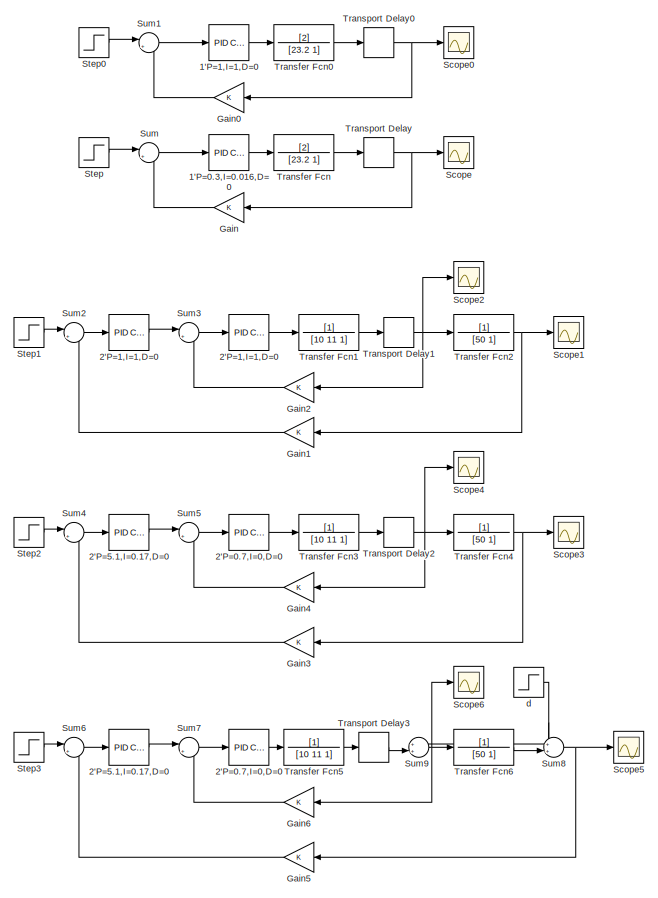
[diagram: root canvas - part 1/5, top left region]
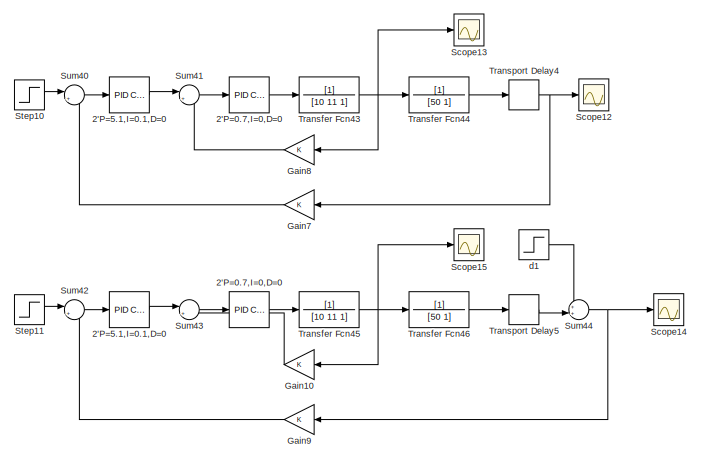
[diagram: root canvas - part 2/5, top right region]
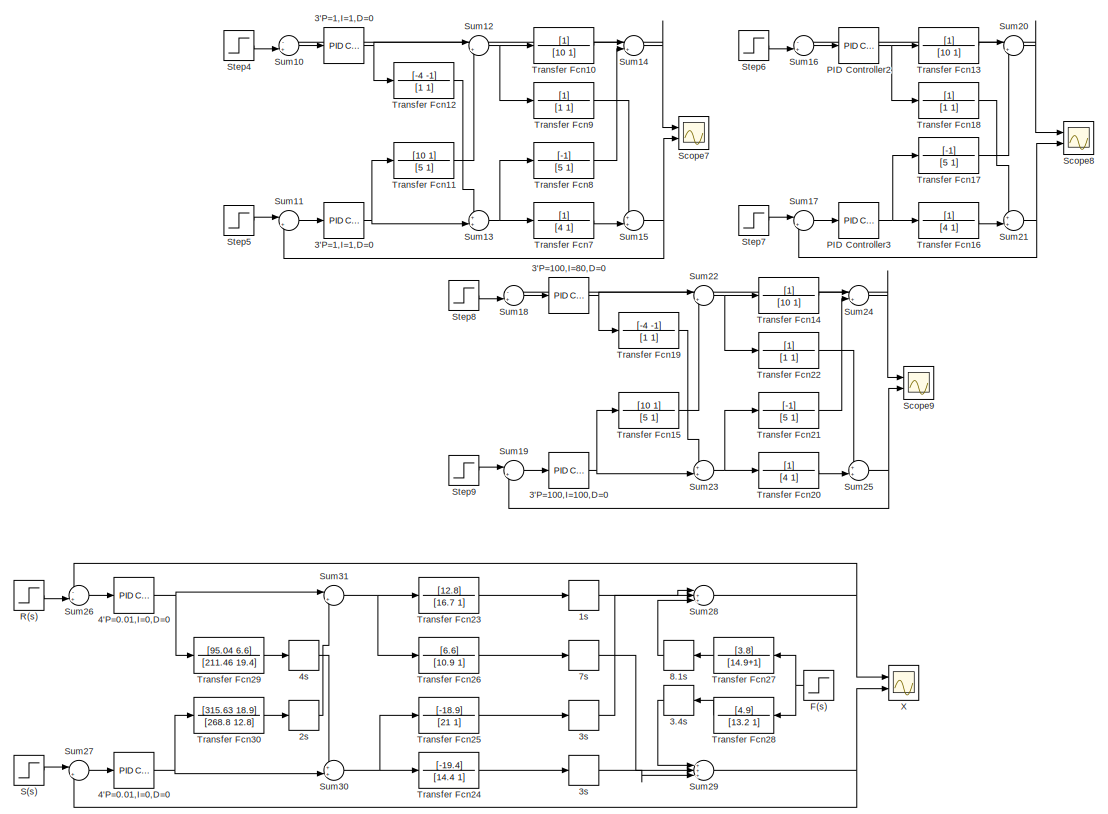
[diagram: root canvas - part 3/5, full width, middle band]
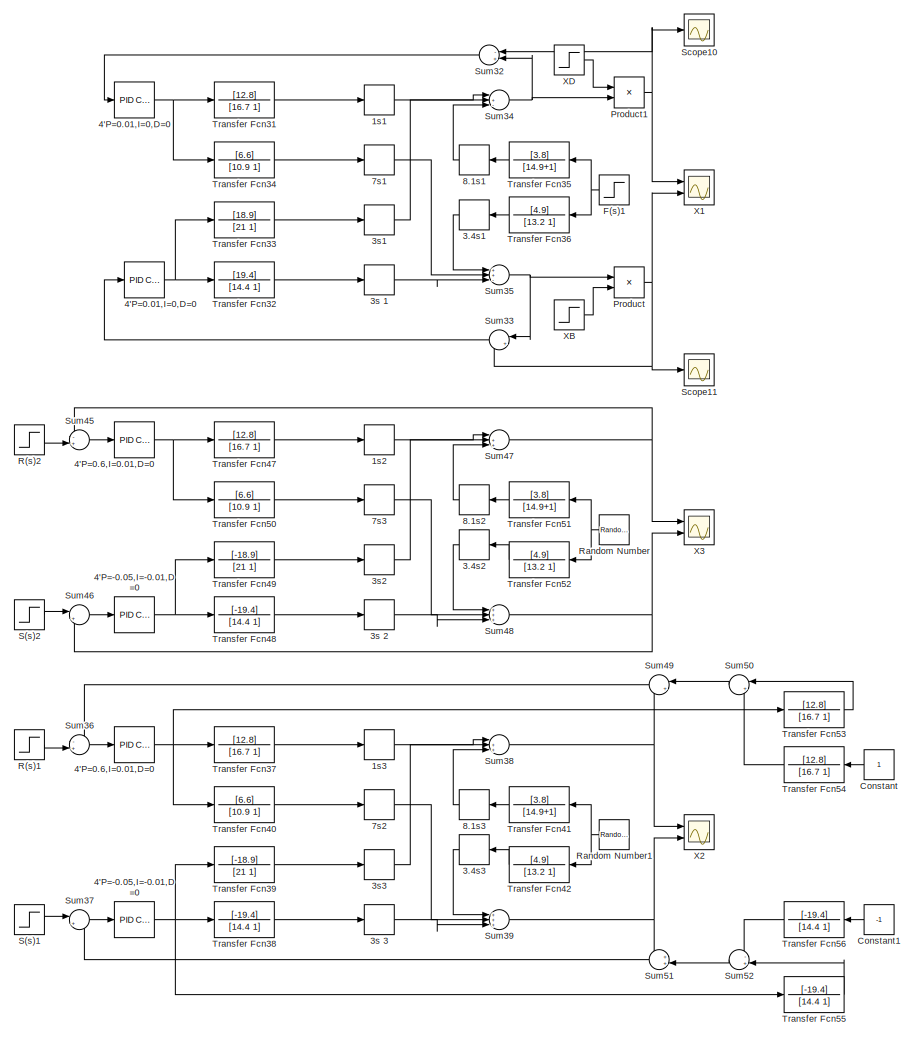
[diagram: root canvas - part 4/5, central region]
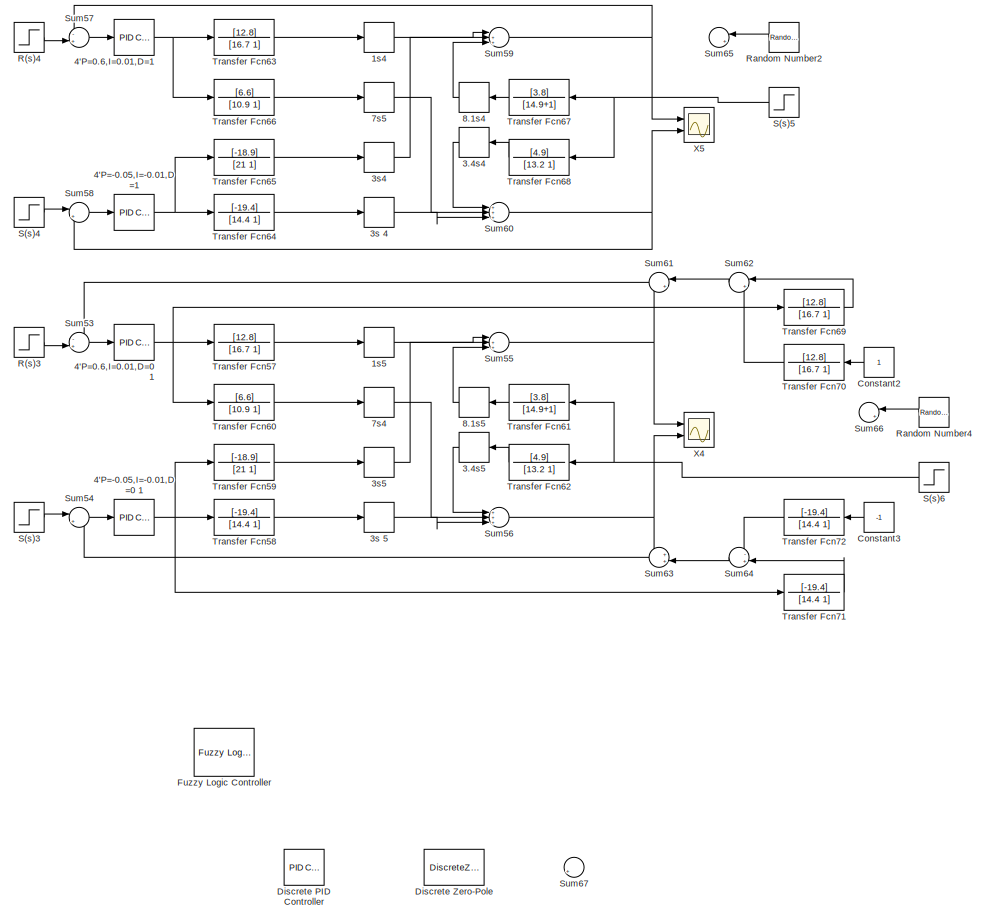
[diagram: root canvas - part 5/5, bottom center region]
MODEL slx_0bb5288d28c2
KIND model
CONFIG AbsTol = auto
CONFIG EnableMultiTasking = off
CONFIG FixedStep = auto
CONFIG MaxStep = auto
CONFIG MinStep = auto
CONFIG RelTol = 1e-3
CONFIG SampleTimeConstraint = Unconstrained
CONFIG Solver = VariableStepAuto
CONFIG SolverName = VariableStepAuto
CONFIG StartTime = 0.0
CONFIG StopTime = 300
BLOCK [Reference] 1'P=0.3,I=0.016,D=0  REF=simulink/Continuous/PID Controller
  Ports = [1, 1]
  SourceBlock = simulink/Continuous/PID Controller
  SourceType = PID 1dof
BLOCK [Reference] 1'P=1,I=1,D=0  REF=simulink/Continuous/PID Controller
  Ports = [1, 1]
  SourceBlock = simulink/Continuous/PID Controller
  SourceType = PID 1dof
BLOCK [TransportDelay] 1s
  Ports = [1, 1]
BLOCK [TransportDelay] 1s1
  Ports = [1, 1]
BLOCK [TransportDelay] 1s2
  Ports = [1, 1]
BLOCK [TransportDelay] 1s3
  Ports = [1, 1]
BLOCK [TransportDelay] 1s4
  Ports = [1, 1]
BLOCK [TransportDelay] 1s5
  Ports = [1, 1]
BLOCK [Reference] 2'P=0.7,I=0,D=0  REF=simulink/Continuous/PID Controller
  Ports = [1, 1]
  SourceBlock = simulink/Continuous/PID Controller
  SourceType = PID 1dof
BLOCK [Reference] 2'P=0.7,I=0,D=0   REF=simulink/Continuous/PID Controller
  Ports = [1, 1]
  SourceBlock = simulink/Continuous/PID Controller
  SourceType = PID 1dof
BLOCK [Reference] 2'P=0.7,I=0,D=0    REF=simulink/Continuous/PID Controller
  Ports = [1, 1]
  SourceBlock = simulink/Continuous/PID Controller
  SourceType = PID 1dof
BLOCK [Reference] 2'P=0.7,I=0,D=0      REF=simulink/Continuous/PID Controller
  Ports = [1, 1]
  SourceBlock = simulink/Continuous/PID Controller
  SourceType = PID 1dof
BLOCK [Reference] 2'P=1,I=1,D=0  REF=simulink/Continuous/PID Controller
  Ports = [1, 1]
  SourceBlock = simulink/Continuous/PID Controller
  SourceType = PID 1dof
BLOCK [Reference] 2'P=1,I=1,D=0    REF=simulink/Continuous/PID Controller
  Ports = [1, 1]
  SourceBlock = simulink/Continuous/PID Controller
  SourceType = PID 1dof
BLOCK [Reference] 2'P=5.1,I=0.1,D=0  REF=simulink/Continuous/PID Controller
  Ports = [1, 1]
  SourceBlock = simulink/Continuous/PID Controller
  SourceType = PID 1dof
BLOCK [Reference] 2'P=5.1,I=0.1,D=0   REF=simulink/Continuous/PID Controller
  Ports = [1, 1]
  SourceBlock = simulink/Continuous/PID Controller
  SourceType = PID 1dof
BLOCK [Reference] 2'P=5.1,I=0.17,D=0  REF=simulink/Continuous/PID Controller
  Ports = [1, 1]
  SourceBlock = simulink/Continuous/PID Controller
  SourceType = PID 1dof
BLOCK [Reference] 2'P=5.1,I=0.17,D=0   REF=simulink/Continuous/PID Controller
  Ports = [1, 1]
  SourceBlock = simulink/Continuous/PID Controller
  SourceType = PID 1dof
BLOCK [TransportDelay] 2s
  DelayTime = 2
  Ports = [1, 1]
BLOCK [Reference] 3'P=1,I=1,D=0  REF=simulink/Continuous/PID Controller
  Ports = [1, 1]
  SourceBlock = simulink/Continuous/PID Controller
  SourceType = PID 1dof
BLOCK [Reference] 3'P=1,I=1,D=0   REF=simulink/Continuous/PID Controller
  Ports = [1, 1]
  SourceBlock = simulink/Continuous/PID Controller
  SourceType = PID 1dof
BLOCK [Reference] 3'P=100,I=100,D=0  REF=simulink/Continuous/PID Controller
  Ports = [1, 1]
  SourceBlock = simulink/Continuous/PID Controller
  SourceType = PID 1dof
BLOCK [Reference] 3'P=100,I=80,D=0  REF=simulink/Continuous/PID Controller
  Ports = [1, 1]
  SourceBlock = simulink/Continuous/PID Controller
  SourceType = PID 1dof
BLOCK [TransportDelay] 3.4s
  DelayTime = 3.4
  Ports = [1, 1]
BLOCK [TransportDelay] 3.4s1
  DelayTime = 3.4
  Ports = [1, 1]
BLOCK [TransportDelay] 3.4s2
  DelayTime = 3.4
  Ports = [1, 1]
BLOCK [TransportDelay] 3.4s3
  DelayTime = 3.4
  Ports = [1, 1]
BLOCK [TransportDelay] 3.4s4
  DelayTime = 3.4
  Ports = [1, 1]
BLOCK [TransportDelay] 3.4s5
  DelayTime = 3.4
  Ports = [1, 1]
BLOCK [TransportDelay] 3s
  DelayTime = 3
  Ports = [1, 1]
BLOCK [TransportDelay] 3s 
  DelayTime = 3
  Ports = [1, 1]
BLOCK [TransportDelay] 3s 1
  DelayTime = 3
  Ports = [1, 1]
BLOCK [TransportDelay] 3s 2
  DelayTime = 3
  Ports = [1, 1]
BLOCK [TransportDelay] 3s 3
  DelayTime = 3
  Ports = [1, 1]
BLOCK [TransportDelay] 3s 4
  DelayTime = 3
  Ports = [1, 1]
BLOCK [TransportDelay] 3s 5
  DelayTime = 3
  Ports = [1, 1]
BLOCK [TransportDelay] 3s1
  DelayTime = 3
  Ports = [1, 1]
BLOCK [TransportDelay] 3s2
  DelayTime = 3
  Ports = [1, 1]
BLOCK [TransportDelay] 3s3
  DelayTime = 3
  Ports = [1, 1]
BLOCK [TransportDelay] 3s4
  DelayTime = 3
  Ports = [1, 1]
BLOCK [TransportDelay] 3s5
  DelayTime = 3
  Ports = [1, 1]
BLOCK [Reference] 4'P=-0.05,I=-0.01,D=0  REF=simulink/Continuous/PID Controller
  Ports = [1, 1]
  SourceBlock = simulink/Continuous/PID Controller
  SourceType = PID 1dof
BLOCK [Reference] 4'P=-0.05,I=-0.01,D=0    REF=simulink/Continuous/PID Controller
  Ports = [1, 1]
  SourceBlock = simulink/Continuous/PID Controller
  SourceType = PID 1dof
BLOCK [Reference] 4'P=-0.05,I=-0.01,D=0  1  REF=simulink/Continuous/PID Controller
  Ports = [1, 1]
  SourceBlock = simulink/Continuous/PID Controller
  SourceType = PID 1dof
BLOCK [Reference] 4'P=-0.05,I=-0.01,D=1  REF=simulink/Continuous/PID Controller
  Ports = [1, 1]
  SourceBlock = simulink/Continuous/PID Controller
  SourceType = PID 1dof
BLOCK [Reference] 4'P=0.01,I=0,D=0  REF=simulink/Continuous/PID Controller
  Ports = [1, 1]
  SourceBlock = simulink/Continuous/PID Controller
  SourceType = PID 1dof
BLOCK [Reference] 4'P=0.01,I=0,D=0   REF=simulink/Continuous/PID Controller
  Ports = [1, 1]
  SourceBlock = simulink/Continuous/PID Controller
  SourceType = PID 1dof
BLOCK [Reference] 4'P=0.01,I=0,D=0    REF=simulink/Continuous/PID Controller
  Ports = [1, 1]
  SourceBlock = simulink/Continuous/PID Controller
  SourceType = PID 1dof
BLOCK [Reference] 4'P=0.01,I=0,D=0     REF=simulink/Continuous/PID Controller
  Ports = [1, 1]
  SourceBlock = simulink/Continuous/PID Controller
  SourceType = PID 1dof
BLOCK [Reference] 4'P=0.6,I=0.01,D=0  REF=simulink/Continuous/PID Controller
  Ports = [1, 1]
  SourceBlock = simulink/Continuous/PID Controller
  SourceType = PID 1dof
BLOCK [Reference] 4'P=0.6,I=0.01,D=0    REF=simulink/Continuous/PID Controller
  Ports = [1, 1]
  SourceBlock = simulink/Continuous/PID Controller
  SourceType = PID 1dof
BLOCK [Reference] 4'P=0.6,I=0.01,D=0  1  REF=simulink/Continuous/PID Controller
  Ports = [1, 1]
  SourceBlock = simulink/Continuous/PID Controller
  SourceType = PID 1dof
BLOCK [Reference] 4'P=0.6,I=0.01,D=1  REF=simulink/Continuous/PID Controller
  Ports = [1, 1]
  SourceBlock = simulink/Continuous/PID Controller
  SourceType = PID 1dof
BLOCK [TransportDelay] 4s
  DelayTime = 4
  Ports = [1, 1]
BLOCK [TransportDelay] 7s
  DelayTime = 7
  Ports = [1, 1]
BLOCK [TransportDelay] 7s1
  DelayTime = 7
  Ports = [1, 1]
BLOCK [TransportDelay] 7s2
  DelayTime = 7
  Ports = [1, 1]
BLOCK [TransportDelay] 7s3
  DelayTime = 7
  Ports = [1, 1]
BLOCK [TransportDelay] 7s4
  DelayTime = 7
  Ports = [1, 1]
BLOCK [TransportDelay] 7s5
  DelayTime = 7
  Ports = [1, 1]
BLOCK [TransportDelay] 8.1s
  DelayTime = 8.1
  Ports = [1, 1]
BLOCK [TransportDelay] 8.1s1
  DelayTime = 8.1
  Ports = [1, 1]
BLOCK [TransportDelay] 8.1s2
  DelayTime = 8.1
  Ports = [1, 1]
BLOCK [TransportDelay] 8.1s3
  DelayTime = 8.1
  Ports = [1, 1]
BLOCK [TransportDelay] 8.1s4
  DelayTime = 8.1
  Ports = [1, 1]
BLOCK [TransportDelay] 8.1s5
  DelayTime = 8.1
  Ports = [1, 1]
BLOCK [Constant] Constant
BLOCK [Constant] Constant1
  Value = -1
BLOCK [Constant] Constant2
BLOCK [Constant] Constant3
  Value = -1
BLOCK [Reference] Discrete PID Controller  REF=simulink/Continuous/PID Controller
  Ports = [1, 1]
  SourceBlock = simulink/Continuous/PID Controller
  SourceType = PID 1dof
BLOCK [DiscreteZeroPole] Discrete Zero-Pole
  Gain = 1
  Poles = [0 0.5]
  SampleTime = -1
BLOCK [Step] F(s)
  After = 0
  SampleTime = 0
  Time = 0
BLOCK [Step] F(s)1
  Before = 1
  SampleTime = 0
  Time = 0
BLOCK [Reference] Fuzzy Logic Controller  REF=fuzblock/Fuzzy Logic   (lib defined in mdl_858b3b3e7478)
Controller
  Ports = [1, 1]
  SourceBlock = fuzblock/Fuzzy Logic \nController
  SourceType = FIS
BLOCK [Gain] Gain
  OutDataTypeStr = Inherit: Inherit via internal rule
  ParamDataTypeStr = Inherit: Inherit via internal rule
  SaturateOnIntegerOverflow = off
BLOCK [Gain] Gain0
  OutDataTypeStr = Inherit: Inherit via internal rule
  ParamDataTypeStr = Inherit: Inherit via internal rule
  SaturateOnIntegerOverflow = off
BLOCK [Gain] Gain1
  OutDataTypeStr = Inherit: Inherit via internal rule
  ParamDataTypeStr = Inherit: Inherit via internal rule
  SaturateOnIntegerOverflow = off
BLOCK [Gain] Gain10
  OutDataTypeStr = Inherit: Inherit via internal rule
  ParamDataTypeStr = Inherit: Inherit via internal rule
  SaturateOnIntegerOverflow = off
BLOCK [Gain] Gain2
  OutDataTypeStr = Inherit: Inherit via internal rule
  ParamDataTypeStr = Inherit: Inherit via internal rule
  SaturateOnIntegerOverflow = off
BLOCK [Gain] Gain3
  OutDataTypeStr = Inherit: Inherit via internal rule
  ParamDataTypeStr = Inherit: Inherit via internal rule
  SaturateOnIntegerOverflow = off
BLOCK [Gain] Gain4
  OutDataTypeStr = Inherit: Inherit via internal rule
  ParamDataTypeStr = Inherit: Inherit via internal rule
  SaturateOnIntegerOverflow = off
BLOCK [Gain] Gain5
  OutDataTypeStr = Inherit: Inherit via internal rule
  ParamDataTypeStr = Inherit: Inherit via internal rule
  SaturateOnIntegerOverflow = off
BLOCK [Gain] Gain6
  OutDataTypeStr = Inherit: Inherit via internal rule
  ParamDataTypeStr = Inherit: Inherit via internal rule
  SaturateOnIntegerOverflow = off
BLOCK [Gain] Gain7
  OutDataTypeStr = Inherit: Inherit via internal rule
  ParamDataTypeStr = Inherit: Inherit via internal rule
  SaturateOnIntegerOverflow = off
BLOCK [Gain] Gain8
  OutDataTypeStr = Inherit: Inherit via internal rule
  ParamDataTypeStr = Inherit: Inherit via internal rule
  SaturateOnIntegerOverflow = off
BLOCK [Gain] Gain9
  OutDataTypeStr = Inherit: Inherit via internal rule
  ParamDataTypeStr = Inherit: Inherit via internal rule
  SaturateOnIntegerOverflow = off
BLOCK [Reference] PID Controller2  REF=simulink/Continuous/PID Controller
  Ports = [1, 1]
  SourceBlock = simulink/Continuous/PID Controller
  SourceType = PID 1dof
BLOCK [Reference] PID Controller3  REF=simulink/Continuous/PID Controller
  Ports = [1, 1]
  SourceBlock = simulink/Continuous/PID Controller
  SourceType = PID 1dof
BLOCK [Product] Product
  InputSameDT = off
  OutDataTypeStr = Inherit: Inherit via internal rule
  Ports = [2, 1]
  RndMeth = Floor
  SaturateOnIntegerOverflow = off
BLOCK [Product] Product1
  InputSameDT = off
  OutDataTypeStr = Inherit: Inherit via internal rule
  Ports = [2, 1]
  RndMeth = Floor
  SaturateOnIntegerOverflow = off
BLOCK [Step] R(s)
  SampleTime = 0
  Time = 0
BLOCK [Step] R(s)1
  After = 10
  SampleTime = 0
  Time = 0
BLOCK [Step] R(s)2
  After = 10
  SampleTime = 0
  Time = 0
BLOCK [Step] R(s)3
  After = 10
  SampleTime = 0
  Time = 0
BLOCK [Step] R(s)4
  After = 10
  SampleTime = 0
  Time = 0
BLOCK [RandomNumber] Random Number
  SampleTime = 0.1
BLOCK [RandomNumber] Random Number1
  SampleTime = 0.1
BLOCK [RandomNumber] Random Number2
  SampleTime = 0.1
BLOCK [RandomNumber] Random Number4
  SampleTime = 0.1
BLOCK [Step] S(s)
  SampleTime = 0
  Time = 0
BLOCK [Step] S(s)1
  After = 10
  SampleTime = 0
  Time = 0
BLOCK [Step] S(s)2
  After = 10
  SampleTime = 0
  Time = 0
BLOCK [Step] S(s)3
  After = 10
  SampleTime = 0
  Time = 0
BLOCK [Step] S(s)4
  After = 10
  SampleTime = 0
  Time = 0
BLOCK [Step] S(s)5
  After = 10
  SampleTime = 0
  Time = 100
BLOCK [Step] S(s)6
  After = 10
  SampleTime = 0
  Time = 100
BLOCK [Scope] Scope
  NumInputPorts = 1
  Ports = [1]
  ScopeSpecificationString = Simulink.scopes.TimeScopeBlockCfg('CurrentConfiguration', extmgr.ConfigurationSet(extmgr.Configuration('Core','General UI',true),extmgr.Configuration('Core','Source UI',true),extmgr.Configuration('Sources','WiredSimulink',true),extmgr.Configuration('Visuals','Time Domain',true,'SerializedDisplays',{struct('MinYLimReal','-0.25136','MaxYLimReal','2.26223','YLabelReal','','MinYLimMag','0.00000','MaxY...<+1408ch>
BLOCK [Scope] Scope0
  NumInputPorts = 1
  Ports = [1]
  ScopeSpecificationString = Simulink.scopes.TimeScopeBlockCfg('CurrentConfiguration', extmgr.ConfigurationSet(extmgr.Configuration('Core','General UI',true),extmgr.Configuration('Core','Source UI',true),extmgr.Configuration('Sources','WiredSimulink',true,'DataLoggingVariableName','ScopeData1'),extmgr.Configuration('Visuals','Time Domain',true,'SerializedDisplays',{struct('MinYLimReal','-1287732.83465','MaxYLimReal','479772.5...<+1492ch>
BLOCK [Scope] Scope1
  NumInputPorts = 1
  Ports = [1]
  ScopeSpecificationString = Simulink.scopes.TimeScopeBlockCfg('CurrentConfiguration', extmgr.ConfigurationSet(extmgr.Configuration('Core','General UI',true),extmgr.Configuration('Core','Source UI',true),extmgr.Configuration('Sources','WiredSimulink',true,'DataLoggingVariableName','ScopeData1'),extmgr.Configuration('Visuals','Time Domain',true,'SerializedDisplays',{struct('MinYLimReal','-76651100683.07205','MaxYLimReal','4697...<+1454ch>
BLOCK [Scope] Scope10
  NumInputPorts = 1
  Ports = [1]
  ScopeSpecificationString = Simulink.scopes.TimeScopeBlockCfg('CurrentConfiguration', extmgr.ConfigurationSet(extmgr.Configuration('Core','General UI',true),extmgr.Configuration('Core','Source UI',true),extmgr.Configuration('Sources','WiredSimulink',true,'DataLoggingVariableName','ScopeData2'),extmgr.Configuration('Visuals','Time Domain',true,'SerializedDisplays',{struct('MinYLimReal','-0.82311','MaxYLimReal','0.4826','YLabe...<+1394ch>
BLOCK [Scope] Scope11
  NumInputPorts = 1
  Ports = [1]
  ScopeSpecificationString = Simulink.scopes.TimeScopeBlockCfg('CurrentConfiguration', extmgr.ConfigurationSet(extmgr.Configuration('Core','General UI',true),extmgr.Configuration('Core','Source UI',true),extmgr.Configuration('Sources','WiredSimulink',true,'DataLoggingVariableName','ScopeData3'),extmgr.Configuration('Visuals','Time Domain',true,'SerializedDisplays',{struct('MinYLimReal','-0.02594','MaxYLimReal','0.23345','YLab...<+1366ch>
BLOCK [Scope] Scope12
  NumInputPorts = 1
  Ports = [1]
  ScopeSpecificationString = Simulink.scopes.TimeScopeBlockCfg('CurrentConfiguration', extmgr.ConfigurationSet(extmgr.Configuration('Core','General UI',true),extmgr.Configuration('Core','Source UI',true),extmgr.Configuration('Sources','WiredSimulink',true,'DataLoggingVariableName','ScopeData1'),extmgr.Configuration('Visuals','Time Domain',true,'SerializedDisplays',{struct('MinYLimReal','-0.14561','MaxYLimReal','1.31046','YLab...<+1419ch>
BLOCK [Scope] Scope13
  NumInputPorts = 1
  Ports = [1]
  ScopeSpecificationString = Simulink.scopes.TimeScopeBlockCfg('CurrentConfiguration', extmgr.ConfigurationSet(extmgr.Configuration('Core','General UI',true),extmgr.Configuration('Core','Source UI',true),extmgr.Configuration('Sources','WiredSimulink',true,'DataLoggingVariableName','ScopeData2'),extmgr.Configuration('Visuals','Time Domain',true,'SerializedDisplays',{struct('MinYLimReal','-0.30908','MaxYLimReal','2.78169','YLab...<+1373ch>
BLOCK [Scope] Scope14
  NumInputPorts = 1
  Ports = [1]
  ScopeSpecificationString = Simulink.scopes.TimeScopeBlockCfg('CurrentConfiguration', extmgr.ConfigurationSet(extmgr.Configuration('Core','General UI',true),extmgr.Configuration('Core','Source UI',true),extmgr.Configuration('Sources','WiredSimulink',true,'DataLoggingVariableName','ScopeData3'),extmgr.Configuration('Visuals','Time Domain',true,'SerializedDisplays',{struct('MinYLimReal','-0.24792','MaxYLimReal','2.23127','YLab...<+1408ch>
BLOCK [Scope] Scope15
  NumInputPorts = 1
  Ports = [1]
  ScopeSpecificationString = Simulink.scopes.TimeScopeBlockCfg('CurrentConfiguration', extmgr.ConfigurationSet(extmgr.Configuration('Core','General UI',true),extmgr.Configuration('Core','Source UI',true),extmgr.Configuration('Sources','WiredSimulink',true,'DataLoggingVariableName','ScopeData4'),extmgr.Configuration('Visuals','Time Domain',true,'SerializedDisplays',{struct('MinYLimReal','-0.30908','MaxYLimReal','2.78169','YLab...<+1373ch>
BLOCK [Scope] Scope2
  NumInputPorts = 1
  Ports = [1]
  ScopeSpecificationString = Simulink.scopes.TimeScopeBlockCfg('CurrentConfiguration', extmgr.ConfigurationSet(extmgr.Configuration('Core','General UI',true),extmgr.Configuration('Core','Source UI',true),extmgr.Configuration('Sources','WiredSimulink',true,'DataLoggingVariableName','ScopeData2'),extmgr.Configuration('Visuals','Time Domain',true,'SerializedDisplays',{struct('MinYLimReal','-4648904763159.4531','MaxYLimReal','262...<+1463ch>
BLOCK [Scope] Scope3
  NumInputPorts = 1
  Ports = [1]
  ScopeSpecificationString = Simulink.scopes.TimeScopeBlockCfg('CurrentConfiguration', extmgr.ConfigurationSet(extmgr.Configuration('Core','General UI',true),extmgr.Configuration('Core','Source UI',true),extmgr.Configuration('Sources','WiredSimulink',true,'DataLoggingVariableName','ScopeData3'),extmgr.Configuration('Visuals','Time Domain',true,'SerializedDisplays',{struct('MinYLimReal','-0.1708','MaxYLimReal','1.53719','YLabe...<+1414ch>
BLOCK [Scope] Scope4
  NumInputPorts = 1
  Ports = [1]
  ScopeSpecificationString = Simulink.scopes.TimeScopeBlockCfg('CurrentConfiguration', extmgr.ConfigurationSet(extmgr.Configuration('Core','General UI',true),extmgr.Configuration('Core','Source UI',true),extmgr.Configuration('Sources','WiredSimulink',true,'DataLoggingVariableName','ScopeData4'),extmgr.Configuration('Visuals','Time Domain',true,'SerializedDisplays',{struct('MinYLimReal','-0.44669','MaxYLimReal','4.0202','YLabe...<+1400ch>
BLOCK [Scope] Scope5
  NumInputPorts = 1
  Ports = [1]
  ScopeSpecificationString = Simulink.scopes.TimeScopeBlockCfg('CurrentConfiguration', extmgr.ConfigurationSet(extmgr.Configuration('Core','General UI',true),extmgr.Configuration('Core','Source UI',true),extmgr.Configuration('Sources','WiredSimulink',true,'DataLoggingVariableName','ScopeData5'),extmgr.Configuration('Visuals','Time Domain',true,'SerializedDisplays',{struct('MinYLimReal','-0.25074','MaxYLimReal','2.25667','YLab...<+1407ch>
BLOCK [Scope] Scope6
  NumInputPorts = 1
  Ports = [1]
  ScopeSpecificationString = Simulink.scopes.TimeScopeBlockCfg('CurrentConfiguration', extmgr.ConfigurationSet(extmgr.Configuration('Core','General UI',true),extmgr.Configuration('Core','Source UI',true),extmgr.Configuration('Sources','WiredSimulink',true,'DataLoggingVariableName','ScopeData6'),extmgr.Configuration('Visuals','Time Domain',true,'SerializedDisplays',{struct('MinYLimReal','-3.66365','MaxYLimReal','4.37764','YLab...<+1392ch>
BLOCK [Scope] Scope7
  NumInputPorts = 2
  Ports = [2]
  ScopeSpecificationString = Simulink.scopes.TimeScopeBlockCfg('CurrentConfiguration', extmgr.ConfigurationSet(extmgr.Configuration('Core','General UI',true),extmgr.Configuration('Core','Source UI',true),extmgr.Configuration('Sources','WiredSimulink',true,'DataLoggingVariableName','ScopeData1'),extmgr.Configuration('Visuals','Time Domain',true,'SerializedDisplays',{struct('MinYLimReal','-0.13313','MaxYLimReal','1.19814','YLab...<+1372ch>
BLOCK [Scope] Scope8
  NumInputPorts = 2
  Ports = [2]
  ScopeSpecificationString = Simulink.scopes.TimeScopeBlockCfg('CurrentConfiguration', extmgr.ConfigurationSet(extmgr.Configuration('Core','General UI',true),extmgr.Configuration('Core','Source UI',true),extmgr.Configuration('Sources','WiredSimulink',true,'DataLoggingVariableName','ScopeData2'),extmgr.Configuration('Visuals','Time Domain',true,'SerializedDisplays',{struct('MinYLimReal','-0.02574','MaxYLimReal','0.14152','YLab...<+1372ch>
BLOCK [Scope] Scope9
  NumInputPorts = 2
  Ports = [2]
  ScopeSpecificationString = Simulink.scopes.TimeScopeBlockCfg('CurrentConfiguration', extmgr.ConfigurationSet(extmgr.Configuration('Core','General UI',true),extmgr.Configuration('Core','Source UI',true),extmgr.Configuration('Sources','WiredSimulink',true,'DataLoggingVariableName','ScopeData3'),extmgr.Configuration('Visuals','Time Domain',true,'SerializedDisplays',{struct('MinYLimReal','-0.12509','MaxYLimReal','1.12583','YLab...<+1372ch>
BLOCK [Step] Step
  After = 2
  SampleTime = 0
  Time = 0
BLOCK [Step] Step0
  After = 2
  SampleTime = 0
  Time = 0
BLOCK [Step] Step1
  SampleTime = 0
  Time = 0
BLOCK [Step] Step10
  SampleTime = 0
  Time = 0
BLOCK [Step] Step11
  SampleTime = 0
  Time = 0
BLOCK [Step] Step2
  SampleTime = 0
  Time = 0
BLOCK [Step] Step3
  SampleTime = 0
  Time = 0
BLOCK [Step] Step4
  SampleTime = 0
  Time = 0
BLOCK [Step] Step5
  SampleTime = 0
  Time = 0
BLOCK [Step] Step6
  SampleTime = 0
  Time = 0
BLOCK [Step] Step7
  SampleTime = 0
  Time = 0
BLOCK [Step] Step8
  SampleTime = 0
  Time = 0
BLOCK [Step] Step9
  SampleTime = 0
  Time = 0
BLOCK [Sum] Sum
  IconShape = round
  InputSameDT = off
  Inputs = |+-
  OutDataTypeStr = Inherit: Inherit via internal rule
  Ports = [2, 1]
  SaturateOnIntegerOverflow = off
BLOCK [Sum] Sum1
  IconShape = round
  InputSameDT = off
  Inputs = |+-
  OutDataTypeStr = Inherit: Inherit via internal rule
  Ports = [2, 1]
  SaturateOnIntegerOverflow = off
BLOCK [Sum] Sum10
  IconShape = round
  InputSameDT = off
  Inputs = -+|
  OutDataTypeStr = Inherit: Inherit via internal rule
  Ports = [2, 1]
  SaturateOnIntegerOverflow = off
BLOCK [Sum] Sum11
  IconShape = round
  InputSameDT = off
  Inputs = |+-
  OutDataTypeStr = Inherit: Inherit via internal rule
  Ports = [2, 1]
  SaturateOnIntegerOverflow = off
BLOCK [Sum] Sum12
  IconShape = round
  InputSameDT = off
  Inputs = |++
  OutDataTypeStr = Inherit: Inherit via internal rule
  Ports = [2, 1]
  SaturateOnIntegerOverflow = off
BLOCK [Sum] Sum13
  IconShape = round
  InputSameDT = off
  Inputs = ++|
  OutDataTypeStr = Inherit: Inherit via internal rule
  Ports = [2, 1]
  SaturateOnIntegerOverflow = off
BLOCK [Sum] Sum14
  IconShape = round
  InputSameDT = off
  Inputs = |++
  OutDataTypeStr = Inherit: Inherit via internal rule
  Ports = [2, 1]
  SaturateOnIntegerOverflow = off
BLOCK [Sum] Sum15
  IconShape = round
  InputSameDT = off
  Inputs = ++|
  OutDataTypeStr = Inherit: Inherit via internal rule
  Ports = [2, 1]
  SaturateOnIntegerOverflow = off
BLOCK [Sum] Sum16
  IconShape = round
  InputSameDT = off
  Inputs = -+|
  OutDataTypeStr = Inherit: Inherit via internal rule
  Ports = [2, 1]
  SaturateOnIntegerOverflow = off
BLOCK [Sum] Sum17
  IconShape = round
  InputSameDT = off
  Inputs = |+-
  OutDataTypeStr = Inherit: Inherit via internal rule
  Ports = [2, 1]
  SaturateOnIntegerOverflow = off
BLOCK [Sum] Sum18
  IconShape = round
  InputSameDT = off
  Inputs = -+|
  OutDataTypeStr = Inherit: Inherit via internal rule
  Ports = [2, 1]
  SaturateOnIntegerOverflow = off
BLOCK [Sum] Sum19
  IconShape = round
  InputSameDT = off
  Inputs = |+-
  OutDataTypeStr = Inherit: Inherit via internal rule
  Ports = [2, 1]
  SaturateOnIntegerOverflow = off
BLOCK [Sum] Sum2
  IconShape = round
  InputSameDT = off
  Inputs = |+-
  OutDataTypeStr = Inherit: Inherit via internal rule
  Ports = [2, 1]
  SaturateOnIntegerOverflow = off
BLOCK [Sum] Sum20
  IconShape = round
  InputSameDT = off
  Inputs = |++
  OutDataTypeStr = Inherit: Inherit via internal rule
  Ports = [2, 1]
  SaturateOnIntegerOverflow = off
BLOCK [Sum] Sum21
  IconShape = round
  InputSameDT = off
  Inputs = ++|
  OutDataTypeStr = Inherit: Inherit via internal rule
  Ports = [2, 1]
  SaturateOnIntegerOverflow = off
BLOCK [Sum] Sum22
  IconShape = round
  InputSameDT = off
  Inputs = |++
  OutDataTypeStr = Inherit: Inherit via internal rule
  Ports = [2, 1]
  SaturateOnIntegerOverflow = off
BLOCK [Sum] Sum23
  IconShape = round
  InputSameDT = off
  Inputs = ++|
  OutDataTypeStr = Inherit: Inherit via internal rule
  Ports = [2, 1]
  SaturateOnIntegerOverflow = off
BLOCK [Sum] Sum24
  IconShape = round
  InputSameDT = off
  Inputs = |++
  OutDataTypeStr = Inherit: Inherit via internal rule
  Ports = [2, 1]
  SaturateOnIntegerOverflow = off
BLOCK [Sum] Sum25
  IconShape = round
  InputSameDT = off
  Inputs = ++|
  OutDataTypeStr = Inherit: Inherit via internal rule
  Ports = [2, 1]
  SaturateOnIntegerOverflow = off
BLOCK [Sum] Sum26
  IconShape = round
  InputSameDT = off
  Inputs = -+|
  OutDataTypeStr = Inherit: Inherit via internal rule
  Ports = [2, 1]
  SaturateOnIntegerOverflow = off
BLOCK [Sum] Sum27
  IconShape = round
  InputSameDT = off
  Inputs = |+-
  OutDataTypeStr = Inherit: Inherit via internal rule
  Ports = [2, 1]
  SaturateOnIntegerOverflow = off
BLOCK [Sum] Sum28
  IconShape = round
  InputSameDT = off
  Inputs = |+++
  OutDataTypeStr = Inherit: Inherit via internal rule
  Ports = [3, 1]
  SaturateOnIntegerOverflow = off
BLOCK [Sum] Sum29
  IconShape = round
  InputSameDT = off
  Inputs = +++|
  OutDataTypeStr = Inherit: Inherit via internal rule
  Ports = [3, 1]
  SaturateOnIntegerOverflow = off
BLOCK [Sum] Sum3
  IconShape = round
  InputSameDT = off
  Inputs = |+-
  OutDataTypeStr = Inherit: Inherit via internal rule
  Ports = [2, 1]
  SaturateOnIntegerOverflow = off
BLOCK [Sum] Sum30
  IconShape = round
  InputSameDT = off
  Inputs = ++|
  OutDataTypeStr = Inherit: Inherit via internal rule
  Ports = [2, 1]
  SaturateOnIntegerOverflow = off
BLOCK [Sum] Sum31
  IconShape = round
  InputSameDT = off
  Inputs = |++
  OutDataTypeStr = Inherit: Inherit via internal rule
  Ports = [2, 1]
  SaturateOnIntegerOverflow = off
BLOCK [Sum] Sum32
  IconShape = round
  InputSameDT = off
  Inputs = -+|
  OutDataTypeStr = Inherit: Inherit via internal rule
  Ports = [2, 1]
  SaturateOnIntegerOverflow = off
BLOCK [Sum] Sum33
  IconShape = round
  InputSameDT = off
  Inputs = |+-
  OutDataTypeStr = Inherit: Inherit via internal rule
  Ports = [2, 1]
  SaturateOnIntegerOverflow = off
BLOCK [Sum] Sum34
  IconShape = round
  InputSameDT = off
  Inputs = |+-+
  OutDataTypeStr = Inherit: Inherit via internal rule
  Ports = [3, 1]
  SaturateOnIntegerOverflow = off
BLOCK [Sum] Sum35
  IconShape = round
  InputSameDT = off
  Inputs = ++-|
  OutDataTypeStr = Inherit: Inherit via internal rule
  Ports = [3, 1]
  SaturateOnIntegerOverflow = off
BLOCK [Sum] Sum36
  IconShape = round
  InputSameDT = off
  Inputs = -+|
  OutDataTypeStr = Inherit: Inherit via internal rule
  Ports = [2, 1]
  SaturateOnIntegerOverflow = off
BLOCK [Sum] Sum37
  IconShape = round
  InputSameDT = off
  Inputs = |+-
  OutDataTypeStr = Inherit: Inherit via internal rule
  Ports = [2, 1]
  SaturateOnIntegerOverflow = off
BLOCK [Sum] Sum38
  IconShape = round
  InputSameDT = off
  Inputs = |+++
  OutDataTypeStr = Inherit: Inherit via internal rule
  Ports = [3, 1]
  SaturateOnIntegerOverflow = off
BLOCK [Sum] Sum39
  IconShape = round
  InputSameDT = off
  Inputs = +++|
  OutDataTypeStr = Inherit: Inherit via internal rule
  Ports = [3, 1]
  SaturateOnIntegerOverflow = off
BLOCK [Sum] Sum4
  IconShape = round
  InputSameDT = off
  Inputs = |+-
  OutDataTypeStr = Inherit: Inherit via internal rule
  Ports = [2, 1]
  SaturateOnIntegerOverflow = off
BLOCK [Sum] Sum40
  IconShape = round
  InputSameDT = off
  Inputs = |+-
  OutDataTypeStr = Inherit: Inherit via internal rule
  Ports = [2, 1]
  SaturateOnIntegerOverflow = off
BLOCK [Sum] Sum41
  IconShape = round
  InputSameDT = off
  Inputs = |+-
  OutDataTypeStr = Inherit: Inherit via internal rule
  Ports = [2, 1]
  SaturateOnIntegerOverflow = off
BLOCK [Sum] Sum42
  IconShape = round
  InputSameDT = off
  Inputs = |+-
  OutDataTypeStr = Inherit: Inherit via internal rule
  Ports = [2, 1]
  SaturateOnIntegerOverflow = off
BLOCK [Sum] Sum43
  IconShape = round
  InputSameDT = off
  Inputs = |+-
  OutDataTypeStr = Inherit: Inherit via internal rule
  Ports = [2, 1]
  SaturateOnIntegerOverflow = off
BLOCK [Sum] Sum44
  IconShape = round
  InputSameDT = off
  Inputs = ++|
  OutDataTypeStr = Inherit: Inherit via internal rule
  Ports = [2, 1]
  SaturateOnIntegerOverflow = off
BLOCK [Sum] Sum45
  IconShape = round
  InputSameDT = off
  Inputs = -+|
  OutDataTypeStr = Inherit: Inherit via internal rule
  Ports = [2, 1]
  SaturateOnIntegerOverflow = off
BLOCK [Sum] Sum46
  IconShape = round
  InputSameDT = off
  Inputs = |+-
  OutDataTypeStr = Inherit: Inherit via internal rule
  Ports = [2, 1]
  SaturateOnIntegerOverflow = off
BLOCK [Sum] Sum47
  IconShape = round
  InputSameDT = off
  Inputs = |+++
  OutDataTypeStr = Inherit: Inherit via internal rule
  Ports = [3, 1]
  SaturateOnIntegerOverflow = off
BLOCK [Sum] Sum48
  IconShape = round
  InputSameDT = off
  Inputs = +++|
  OutDataTypeStr = Inherit: Inherit via internal rule
  Ports = [3, 1]
  SaturateOnIntegerOverflow = off
BLOCK [Sum] Sum49
  IconShape = round
  InputSameDT = off
  Inputs = |++
  OutDataTypeStr = Inherit: Inherit via internal rule
  Ports = [2, 1]
  SaturateOnIntegerOverflow = off
BLOCK [Sum] Sum5
  IconShape = round
  InputSameDT = off
  Inputs = |+-
  OutDataTypeStr = Inherit: Inherit via internal rule
  Ports = [2, 1]
  SaturateOnIntegerOverflow = off
BLOCK [Sum] Sum50
  IconShape = round
  InputSameDT = off
  Inputs = |+-
  OutDataTypeStr = Inherit: Inherit via internal rule
  Ports = [2, 1]
  SaturateOnIntegerOverflow = off
BLOCK [Sum] Sum51
  IconShape = round
  InputSameDT = off
  Inputs = ++|
  OutDataTypeStr = Inherit: Inherit via internal rule
  Ports = [2, 1]
  SaturateOnIntegerOverflow = off
BLOCK [Sum] Sum52
  IconShape = round
  InputSameDT = off
  Inputs = -+|
  OutDataTypeStr = Inherit: Inherit via internal rule
  Ports = [2, 1]
  SaturateOnIntegerOverflow = off
BLOCK [Sum] Sum53
  IconShape = round
  InputSameDT = off
  Inputs = -+|
  OutDataTypeStr = Inherit: Inherit via internal rule
  Ports = [2, 1]
  SaturateOnIntegerOverflow = off
BLOCK [Sum] Sum54
  IconShape = round
  InputSameDT = off
  Inputs = |+-
  OutDataTypeStr = Inherit: Inherit via internal rule
  Ports = [2, 1]
  SaturateOnIntegerOverflow = off
BLOCK [Sum] Sum55
  IconShape = round
  InputSameDT = off
  Inputs = |+++
  OutDataTypeStr = Inherit: Inherit via internal rule
  Ports = [3, 1]
  SaturateOnIntegerOverflow = off
BLOCK [Sum] Sum56
  IconShape = round
  InputSameDT = off
  Inputs = +++|
  OutDataTypeStr = Inherit: Inherit via internal rule
  Ports = [3, 1]
  SaturateOnIntegerOverflow = off
BLOCK [Sum] Sum57
  IconShape = round
  InputSameDT = off
  Inputs = -+|
  OutDataTypeStr = Inherit: Inherit via internal rule
  Ports = [2, 1]
  SaturateOnIntegerOverflow = off
BLOCK [Sum] Sum58
  IconShape = round
  InputSameDT = off
  Inputs = |+-
  OutDataTypeStr = Inherit: Inherit via internal rule
  Ports = [2, 1]
  SaturateOnIntegerOverflow = off
BLOCK [Sum] Sum59
  IconShape = round
  InputSameDT = off
  Inputs = |+++
  OutDataTypeStr = Inherit: Inherit via internal rule
  Ports = [3, 1]
  SaturateOnIntegerOverflow = off
BLOCK [Sum] Sum6
  IconShape = round
  InputSameDT = off
  Inputs = |+-
  OutDataTypeStr = Inherit: Inherit via internal rule
  Ports = [2, 1]
  SaturateOnIntegerOverflow = off
BLOCK [Sum] Sum60
  IconShape = round
  InputSameDT = off
  Inputs = +++|
  OutDataTypeStr = Inherit: Inherit via internal rule
  Ports = [3, 1]
  SaturateOnIntegerOverflow = off
BLOCK [Sum] Sum61
  IconShape = round
  InputSameDT = off
  Inputs = |++
  OutDataTypeStr = Inherit: Inherit via internal rule
  Ports = [2, 1]
  SaturateOnIntegerOverflow = off
BLOCK [Sum] Sum62
  IconShape = round
  InputSameDT = off
  Inputs = |+-
  OutDataTypeStr = Inherit: Inherit via internal rule
  Ports = [2, 1]
  SaturateOnIntegerOverflow = off
BLOCK [Sum] Sum63
  IconShape = round
  InputSameDT = off
  Inputs = ++|
  OutDataTypeStr = Inherit: Inherit via internal rule
  Ports = [2, 1]
  SaturateOnIntegerOverflow = off
BLOCK [Sum] Sum64
  IconShape = round
  InputSameDT = off
  Inputs = -+|
  OutDataTypeStr = Inherit: Inherit via internal rule
  Ports = [2, 1]
  SaturateOnIntegerOverflow = off
BLOCK [Sum] Sum65
  IconShape = round
  InputSameDT = off
  Inputs = |++
  OutDataTypeStr = Inherit: Inherit via internal rule
  Ports = [2, 1]
  SaturateOnIntegerOverflow = off
BLOCK [Sum] Sum66
  IconShape = round
  InputSameDT = off
  Inputs = |++
  OutDataTypeStr = Inherit: Inherit via internal rule
  Ports = [2, 1]
  SaturateOnIntegerOverflow = off
BLOCK [Sum] Sum67
  IconShape = round
  InputSameDT = off
  Inputs = |+-
  OutDataTypeStr = Inherit: Inherit via internal rule
  Ports = [2, 1]
  SaturateOnIntegerOverflow = off
BLOCK [Sum] Sum7
  IconShape = round
  InputSameDT = off
  Inputs = |+-
  OutDataTypeStr = Inherit: Inherit via internal rule
  Ports = [2, 1]
  SaturateOnIntegerOverflow = off
BLOCK [Sum] Sum8
  IconShape = round
  InputSameDT = off
  Inputs = ++|
  OutDataTypeStr = Inherit: Inherit via internal rule
  Ports = [2, 1]
  SaturateOnIntegerOverflow = off
BLOCK [Sum] Sum9
  IconShape = round
  InputSameDT = off
  Inputs = ++|
  OutDataTypeStr = Inherit: Inherit via internal rule
  Ports = [2, 1]
  SaturateOnIntegerOverflow = off
BLOCK [TransferFcn] Transfer Fcn
  Denominator = [23.2 1]
  Numerator = [2]
BLOCK [TransferFcn] Transfer Fcn0
  Denominator = [23.2 1]
  Numerator = [2]
BLOCK [TransferFcn] Transfer Fcn1
  Denominator = [10 11 1]
BLOCK [TransferFcn] Transfer Fcn10
  Denominator = [10 1]
BLOCK [TransferFcn] Transfer Fcn11
  Denominator = [5 1]
  Numerator = [10 1]
BLOCK [TransferFcn] Transfer Fcn12
  Denominator = [1 1]
  Numerator = [-4 -1]
BLOCK [TransferFcn] Transfer Fcn13
  Denominator = [10 1]
BLOCK [TransferFcn] Transfer Fcn14
  Denominator = [10 1]
BLOCK [TransferFcn] Transfer Fcn15
  Denominator = [5 1]
  Numerator = [10 1]
BLOCK [TransferFcn] Transfer Fcn16
  Denominator = [4 1]
BLOCK [TransferFcn] Transfer Fcn17
  Denominator = [5 1]
  Numerator = [-1]
BLOCK [TransferFcn] Transfer Fcn18
  Denominator = [1 1]
BLOCK [TransferFcn] Transfer Fcn19
  Denominator = [1 1]
  Numerator = [-4 -1]
BLOCK [TransferFcn] Transfer Fcn2
  Denominator = [50 1]
BLOCK [TransferFcn] Transfer Fcn20
  Denominator = [4 1]
BLOCK [TransferFcn] Transfer Fcn21
  Denominator = [5 1]
  Numerator = [-1]
BLOCK [TransferFcn] Transfer Fcn22
  Denominator = [1 1]
BLOCK [TransferFcn] Transfer Fcn23
  Denominator = [16.7 1]
  Numerator = [12.8]
BLOCK [TransferFcn] Transfer Fcn24
  Denominator = [14.4 1]
  Numerator = [-19.4]
BLOCK [TransferFcn] Transfer Fcn25
  Denominator = [21 1]
  Numerator = [-18.9]
BLOCK [TransferFcn] Transfer Fcn26
  Denominator = [10.9 1]
  Numerator = [6.6]
BLOCK [TransferFcn] Transfer Fcn27
  Denominator = [14.9+1]
  Numerator = [3.8]
BLOCK [TransferFcn] Transfer Fcn28
  Denominator = [13.2 1]
  Numerator = [4.9]
BLOCK [TransferFcn] Transfer Fcn29
  Denominator = [211.46 19.4]
  Numerator = [95.04 6.6]
BLOCK [TransferFcn] Transfer Fcn3
  Denominator = [10 11 1]
BLOCK [TransferFcn] Transfer Fcn30
  Denominator = [268.8 12.8]
  Numerator = [315.63 18.9]
BLOCK [TransferFcn] Transfer Fcn31
  Denominator = [16.7 1]
  Numerator = [12.8]
BLOCK [TransferFcn] Transfer Fcn32
  Denominator = [14.4 1]
  Numerator = [19.4]
BLOCK [TransferFcn] Transfer Fcn33
  Denominator = [21 1]
  Numerator = [18.9]
BLOCK [TransferFcn] Transfer Fcn34
  Denominator = [10.9 1]
  Numerator = [6.6]
BLOCK [TransferFcn] Transfer Fcn35
  Denominator = [14.9+1]
  Numerator = [3.8]
BLOCK [TransferFcn] Transfer Fcn36
  Denominator = [13.2 1]
  Numerator = [4.9]
BLOCK [TransferFcn] Transfer Fcn37
  Denominator = [16.7 1]
  Numerator = [12.8]
BLOCK [TransferFcn] Transfer Fcn38
  Denominator = [14.4 1]
  Numerator = [-19.4]
BLOCK [TransferFcn] Transfer Fcn39
  Denominator = [21 1]
  Numerator = [-18.9]
BLOCK [TransferFcn] Transfer Fcn4
  Denominator = [50 1]
BLOCK [TransferFcn] Transfer Fcn40
  Denominator = [10.9 1]
  Numerator = [6.6]
BLOCK [TransferFcn] Transfer Fcn41
  Denominator = [14.9+1]
  Numerator = [3.8]
BLOCK [TransferFcn] Transfer Fcn42
  Denominator = [13.2 1]
  Numerator = [4.9]
BLOCK [TransferFcn] Transfer Fcn43
  Denominator = [10 11 1]
BLOCK [TransferFcn] Transfer Fcn44
  Denominator = [50 1]
BLOCK [TransferFcn] Transfer Fcn45
  Denominator = [10 11 1]
BLOCK [TransferFcn] Transfer Fcn46
  Denominator = [50 1]
BLOCK [TransferFcn] Transfer Fcn47
  Denominator = [16.7 1]
  Numerator = [12.8]
BLOCK [TransferFcn] Transfer Fcn48
  Denominator = [14.4 1]
  Numerator = [-19.4]
BLOCK [TransferFcn] Transfer Fcn49
  Denominator = [21 1]
  Numerator = [-18.9]
BLOCK [TransferFcn] Transfer Fcn5
  Denominator = [10 11 1]
BLOCK [TransferFcn] Transfer Fcn50
  Denominator = [10.9 1]
  Numerator = [6.6]
BLOCK [TransferFcn] Transfer Fcn51
  Denominator = [14.9+1]
  Numerator = [3.8]
BLOCK [TransferFcn] Transfer Fcn52
  Denominator = [13.2 1]
  Numerator = [4.9]
BLOCK [TransferFcn] Transfer Fcn53
  Denominator = [16.7 1]
  Numerator = [12.8]
BLOCK [TransferFcn] Transfer Fcn54
  Denominator = [16.7 1]
  Numerator = [12.8]
BLOCK [TransferFcn] Transfer Fcn55
  Denominator = [14.4 1]
  Numerator = [-19.4]
BLOCK [TransferFcn] Transfer Fcn56
  Denominator = [14.4 1]
  Numerator = [-19.4]
BLOCK [TransferFcn] Transfer Fcn57
  Denominator = [16.7 1]
  Numerator = [12.8]
BLOCK [TransferFcn] Transfer Fcn58
  Denominator = [14.4 1]
  Numerator = [-19.4]
BLOCK [TransferFcn] Transfer Fcn59
  Denominator = [21 1]
  Numerator = [-18.9]
BLOCK [TransferFcn] Transfer Fcn6
  Denominator = [50 1]
BLOCK [TransferFcn] Transfer Fcn60
  Denominator = [10.9 1]
  Numerator = [6.6]
BLOCK [TransferFcn] Transfer Fcn61
  Denominator = [14.9+1]
  Numerator = [3.8]
BLOCK [TransferFcn] Transfer Fcn62
  Denominator = [13.2 1]
  Numerator = [4.9]
BLOCK [TransferFcn] Transfer Fcn63
  Denominator = [16.7 1]
  Numerator = [12.8]
BLOCK [TransferFcn] Transfer Fcn64
  Denominator = [14.4 1]
  Numerator = [-19.4]
BLOCK [TransferFcn] Transfer Fcn65
  Denominator = [21 1]
  Numerator = [-18.9]
BLOCK [TransferFcn] Transfer Fcn66
  Denominator = [10.9 1]
  Numerator = [6.6]
BLOCK [TransferFcn] Transfer Fcn67
  Denominator = [14.9+1]
  Numerator = [3.8]
BLOCK [TransferFcn] Transfer Fcn68
  Denominator = [13.2 1]
  Numerator = [4.9]
BLOCK [TransferFcn] Transfer Fcn69
  Denominator = [16.7 1]
  Numerator = [12.8]
BLOCK [TransferFcn] Transfer Fcn7
  Denominator = [4 1]
BLOCK [TransferFcn] Transfer Fcn70
  Denominator = [16.7 1]
  Numerator = [12.8]
BLOCK [TransferFcn] Transfer Fcn71
  Denominator = [14.4 1]
  Numerator = [-19.4]
BLOCK [TransferFcn] Transfer Fcn72
  Denominator = [14.4 1]
  Numerator = [-19.4]
BLOCK [TransferFcn] Transfer Fcn8
  Denominator = [5 1]
  Numerator = [-1]
BLOCK [TransferFcn] Transfer Fcn9
  Denominator = [1 1]
BLOCK [TransportDelay] Transport Delay
  DelayTime = 5.4
  Ports = [1, 1]
BLOCK [TransportDelay] Transport Delay0
  DelayTime = 5.4
  Ports = [1, 1]
BLOCK [TransportDelay] Transport Delay1
  DelayTime = 10
  Ports = [1, 1]
BLOCK [TransportDelay] Transport Delay2
  DelayTime = 10
  Ports = [1, 1]
BLOCK [TransportDelay] Transport Delay3
  DelayTime = 10
  Ports = [1, 1]
BLOCK [TransportDelay] Transport Delay4
  DelayTime = 10
  Ports = [1, 1]
BLOCK [TransportDelay] Transport Delay5
  DelayTime = 10
  Ports = [1, 1]
BLOCK [Scope] X
  NumInputPorts = 2
  Ports = [2]
  ScopeSpecificationString = Simulink.scopes.TimeScopeBlockCfg('CurrentConfiguration', extmgr.ConfigurationSet(extmgr.Configuration('Core','General UI',true),extmgr.Configuration('Core','Source UI',true),extmgr.Configuration('Sources','WiredSimulink',true,'DataLoggingVariableName','ScopeData4'),extmgr.Configuration('Visuals','Time Domain',true,'SerializedDisplays',{struct('MinYLimReal','-0.12848','MaxYLimReal','0.08105','YLab...<+1441ch>
BLOCK [Scope] X1
  NumInputPorts = 2
  Ports = [2]
  ScopeSpecificationString = Simulink.scopes.TimeScopeBlockCfg('CurrentConfiguration', extmgr.ConfigurationSet(extmgr.Configuration('Core','General UI',true),extmgr.Configuration('Core','Source UI',true),extmgr.Configuration('Sources','WiredSimulink',true,'DataLoggingVariableName','ScopeData1'),extmgr.Configuration('Visuals','Time Domain',true,'SerializedDisplays',{struct('MinYLimReal','-0.8231','MaxYLimReal','0.48258','YLabe...<+1471ch>
BLOCK [Scope] X2
  NumInputPorts = 2
  Ports = [2]
  ScopeSpecificationString = Simulink.scopes.TimeScopeBlockCfg('CurrentConfiguration', extmgr.ConfigurationSet(extmgr.Configuration('Core','General UI',true),extmgr.Configuration('Core','Source UI',true),extmgr.Configuration('Sources','WiredSimulink',true,'DataLoggingVariableName','ScopeData6'),extmgr.Configuration('Visuals','Time Domain',true,'SerializedDisplays',{struct('MinYLimReal','-2.35409','MaxYLimReal','21.18678','YLa...<+1376ch>
BLOCK [Scope] X3
  NumInputPorts = 2
  Ports = [2]
  ScopeSpecificationString = Simulink.scopes.TimeScopeBlockCfg('CurrentConfiguration', extmgr.ConfigurationSet(extmgr.Configuration('Core','General UI',true),extmgr.Configuration('Core','Source UI',true),extmgr.Configuration('Sources','WiredSimulink',true,'DataLoggingVariableName','ScopeData5'),extmgr.Configuration('Visuals','Time Domain',true,'SerializedDisplays',{struct('MinYLimReal','-1.69967','MaxYLimReal','15.29702','YLa...<+1376ch>
BLOCK [Scope] X4
  NumInputPorts = 2
  Ports = [2]
  ScopeSpecificationString = Simulink.scopes.TimeScopeBlockCfg('CurrentConfiguration', extmgr.ConfigurationSet(extmgr.Configuration('Core','General UI',true),extmgr.Configuration('Core','Source UI',true),extmgr.Configuration('Sources','WiredSimulink',true,'DataLoggingVariableName','ScopeData7'),extmgr.Configuration('Visuals','Time Domain',true,'SerializedDisplays',{struct('MinYLimReal','-5.50363','MaxYLimReal','49.53268','YLa...<+1376ch>
BLOCK [Scope] X5
  NumInputPorts = 2
  Ports = [2]
  ScopeSpecificationString = Simulink.scopes.TimeScopeBlockCfg('CurrentConfiguration', extmgr.ConfigurationSet(extmgr.Configuration('Core','General UI',true),extmgr.Configuration('Core','Source UI',true),extmgr.Configuration('Sources','WiredSimulink',true,'DataLoggingVariableName','ScopeData8'),extmgr.Configuration('Visuals','Time Domain',true,'SerializedDisplays',{struct('MinYLimReal','-3.69311','MaxYLimReal','33.23795','YLa...<+1376ch>
BLOCK [Step] XB
  After = 0.05
  Before = 0.05
  SampleTime = 0
  Time = 0
BLOCK [Step] XD
  After = 1.5
  Before = 0.5
  SampleTime = 0
  Time = 0
BLOCK [Step] d
  SampleTime = 0
  Time = 100
BLOCK [Step] d1
  SampleTime = 0
  Time = 100
LINE 1'P=0.3,I=0.016,D=0:1 -> Transfer Fcn:1
LINE 1'P=1,I=1,D=0:1 -> Transfer Fcn0:1
LINE 1s1:1 -> Sum34:1
LINE 1s2:1 -> Sum47:1
LINE 1s3:1 -> Sum38:1
LINE 1s4:1 -> Sum59:1
LINE 1s5:1 -> Sum55:1
LINE 1s:1 -> Sum28:1
LINE 2'P=0.7,I=0,D=0    :1 -> Transfer Fcn45:1
LINE 2'P=0.7,I=0,D=0  :1 -> Transfer Fcn43:1
LINE 2'P=0.7,I=0,D=0 :1 -> Transfer Fcn5:1
LINE 2'P=0.7,I=0,D=0:1 -> Transfer Fcn3:1
LINE 2'P=1,I=1,D=0  :1 -> Transfer Fcn1:1
LINE 2'P=1,I=1,D=0:1 -> Sum3:1
LINE 2'P=5.1,I=0.1,D=0 :1 -> Sum43:1
LINE 2'P=5.1,I=0.1,D=0:1 -> Sum41:1
LINE 2'P=5.1,I=0.17,D=0 :1 -> Sum7:1
LINE 2'P=5.1,I=0.17,D=0:1 -> Sum5:1
LINE 2s:1 -> Sum31:2
NET 3'P=1,I=1,D=0 :1 -> Sum13:2, Transfer Fcn11:1
NET 3'P=1,I=1,D=0:1 -> Sum12:1, Transfer Fcn12:1
NET 3'P=100,I=100,D=0:1 -> Sum23:2, Transfer Fcn15:1
NET 3'P=100,I=80,D=0:1 -> Sum22:1, Transfer Fcn19:1
LINE 3.4s1:1 -> Sum35:1
LINE 3.4s2:1 -> Sum48:1
LINE 3.4s3:1 -> Sum39:1
LINE 3.4s4:1 -> Sum60:1
LINE 3.4s5:1 -> Sum56:1
LINE 3.4s:1 -> Sum29:1
LINE 3s 1:1 -> Sum35:3
LINE 3s 2:1 -> Sum48:3
LINE 3s 3:1 -> Sum39:3
LINE 3s 4:1 -> Sum60:3
LINE 3s 5:1 -> Sum56:3
LINE 3s :1 -> Sum29:3
LINE 3s1:1 -> Sum34:2
LINE 3s2:1 -> Sum47:2
LINE 3s3:1 -> Sum38:2
LINE 3s4:1 -> Sum59:2
LINE 3s5:1 -> Sum55:2
LINE 3s:1 -> Sum28:2
NET 4'P=-0.05,I=-0.01,D=0  1:1 -> Transfer Fcn58:1, Transfer Fcn59:1, Transfer Fcn71:1
NET 4'P=-0.05,I=-0.01,D=0  :1 -> Transfer Fcn38:1, Transfer Fcn39:1, Transfer Fcn55:1
NET 4'P=-0.05,I=-0.01,D=0:1 -> Transfer Fcn48:1, Transfer Fcn49:1
NET 4'P=-0.05,I=-0.01,D=1:1 -> Transfer Fcn64:1, Transfer Fcn65:1
NET 4'P=0.01,I=0,D=0   :1 -> Transfer Fcn32:1, Transfer Fcn33:1
NET 4'P=0.01,I=0,D=0  :1 -> Transfer Fcn31:1, Transfer Fcn34:1
NET 4'P=0.01,I=0,D=0 :1 -> Sum30:2, Transfer Fcn30:1
NET 4'P=0.01,I=0,D=0:1 -> Sum31:1, Transfer Fcn29:1
NET 4'P=0.6,I=0.01,D=0  1:1 -> Transfer Fcn57:1, Transfer Fcn60:1, Transfer Fcn69:1
NET 4'P=0.6,I=0.01,D=0  :1 -> Transfer Fcn37:1, Transfer Fcn40:1, Transfer Fcn53:1
NET 4'P=0.6,I=0.01,D=0:1 -> Transfer Fcn47:1, Transfer Fcn50:1
NET 4'P=0.6,I=0.01,D=1:1 -> Transfer Fcn63:1, Transfer Fcn66:1
LINE 4s:1 -> Sum30:1
LINE 7s1:1 -> Sum35:2
LINE 7s2:1 -> Sum39:2
LINE 7s3:1 -> Sum48:2
LINE 7s4:1 -> Sum56:2
LINE 7s5:1 -> Sum60:2
LINE 7s:1 -> Sum29:2
LINE 8.1s1:1 -> Sum34:3
LINE 8.1s2:1 -> Sum47:3
LINE 8.1s3:1 -> Sum38:3
LINE 8.1s4:1 -> Sum59:3
LINE 8.1s5:1 -> Sum55:3
LINE 8.1s:1 -> Sum28:3
LINE Constant1:1 -> Transfer Fcn56:1
LINE Constant2:1 -> Transfer Fcn70:1
LINE Constant3:1 -> Transfer Fcn72:1
LINE Constant:1 -> Transfer Fcn54:1
NET F(s)1:1 -> Transfer Fcn35:1, Transfer Fcn36:1
NET F(s):1 -> Transfer Fcn27:1, Transfer Fcn28:1
LINE Gain0:1 -> Sum1:2
LINE Gain10:1 -> Sum43:2
LINE Gain1:1 -> Sum2:2
LINE Gain2:1 -> Sum3:2
LINE Gain3:1 -> Sum4:2
LINE Gain4:1 -> Sum5:2
LINE Gain5:1 -> Sum6:2
LINE Gain6:1 -> Sum7:2
LINE Gain7:1 -> Sum40:2
LINE Gain8:1 -> Sum41:2
LINE Gain9:1 -> Sum42:2
LINE Gain:1 -> Sum:2
NET PID Controller2:1 -> Transfer Fcn13:1, Transfer Fcn18:1
NET PID Controller3:1 -> Transfer Fcn16:1, Transfer Fcn17:1
NET Product1:1 -> Scope10:1, Sum32:1, X1:1
NET Product:1 -> Scope11:1, Sum33:2, X1:2
LINE R(s)1:1 -> Sum36:2
LINE R(s)2:1 -> Sum45:2
LINE R(s)3:1 -> Sum53:2
LINE R(s)4:1 -> Sum57:2
LINE R(s):1 -> Sum26:2
NET Random Number1:1 -> Transfer Fcn41:1, Transfer Fcn42:1
LINE Random Number2:1 -> Sum65:1
LINE Random Number4:1 -> Sum66:1
NET Random Number:1 -> Transfer Fcn51:1, Transfer Fcn52:1
LINE S(s)1:1 -> Sum37:1
LINE S(s)2:1 -> Sum46:1
LINE S(s)3:1 -> Sum54:1
LINE S(s)4:1 -> Sum58:1
NET S(s)5:1 -> Transfer Fcn67:1, Transfer Fcn68:1
NET S(s)6:1 -> Transfer Fcn61:1, Transfer Fcn62:1
LINE S(s):1 -> Sum27:1
LINE Step0:1 -> Sum1:1
LINE Step10:1 -> Sum40:1
LINE Step11:1 -> Sum42:1
LINE Step1:1 -> Sum2:1
LINE Step2:1 -> Sum4:1
LINE Step3:1 -> Sum6:1
LINE Step4:1 -> Sum10:2
LINE Step5:1 -> Sum11:1
LINE Step6:1 -> Sum16:2
LINE Step7:1 -> Sum17:1
LINE Step8:1 -> Sum18:2
LINE Step9:1 -> Sum19:1
LINE Step:1 -> Sum:1
LINE Sum10:1 -> 3'P=1,I=1,D=0:1
LINE Sum11:1 -> 3'P=1,I=1,D=0 :1
NET Sum12:1 -> Transfer Fcn10:1, Transfer Fcn9:1
NET Sum13:1 -> Transfer Fcn7:1, Transfer Fcn8:1
NET Sum14:1 -> Scope7:1, Sum10:1
NET Sum15:1 -> Scope7:2, Sum11:2
LINE Sum16:1 -> PID Controller2:1
LINE Sum17:1 -> PID Controller3:1
LINE Sum18:1 -> 3'P=100,I=80,D=0:1
LINE Sum19:1 -> 3'P=100,I=100,D=0:1
LINE Sum1:1 -> 1'P=1,I=1,D=0:1
NET Sum20:1 -> Scope8:1, Sum16:1
NET Sum21:1 -> Scope8:2, Sum17:2
NET Sum22:1 -> Transfer Fcn14:1, Transfer Fcn22:1
NET Sum23:1 -> Transfer Fcn20:1, Transfer Fcn21:1
NET Sum24:1 -> Scope9:1, Sum18:1
NET Sum25:1 -> Scope9:2, Sum19:2
LINE Sum26:1 -> 4'P=0.01,I=0,D=0:1
LINE Sum27:1 -> 4'P=0.01,I=0,D=0 :1
NET Sum28:1 -> Sum26:1, X:1
NET Sum29:1 -> Sum27:2, X:2
LINE Sum2:1 -> 2'P=1,I=1,D=0:1
NET Sum30:1 -> Transfer Fcn24:1, Transfer Fcn25:1
NET Sum31:1 -> Transfer Fcn23:1, Transfer Fcn26:1
LINE Sum32:1 -> 4'P=0.01,I=0,D=0  :1
LINE Sum33:1 -> 4'P=0.01,I=0,D=0   :1
NET Sum34:1 -> Product1:2, Sum32:2
NET Sum35:1 -> Product:1, Sum33:1
LINE Sum36:1 -> 4'P=0.6,I=0.01,D=0  :1
LINE Sum37:1 -> 4'P=-0.05,I=-0.01,D=0  :1
NET Sum38:1 -> Sum49:2, X2:1
NET Sum39:1 -> Sum51:1, X2:2
LINE Sum3:1 -> 2'P=1,I=1,D=0  :1
LINE Sum40:1 -> 2'P=5.1,I=0.1,D=0:1
LINE Sum41:1 -> 2'P=0.7,I=0,D=0  :1
LINE Sum42:1 -> 2'P=5.1,I=0.1,D=0 :1
LINE Sum43:1 -> 2'P=0.7,I=0,D=0    :1
NET Sum44:1 -> Gain9:1, Scope14:1
LINE Sum45:1 -> 4'P=0.6,I=0.01,D=0:1
LINE Sum46:1 -> 4'P=-0.05,I=-0.01,D=0:1
NET Sum47:1 -> Sum45:1, X3:1
NET Sum48:1 -> Sum46:2, X3:2
LINE Sum49:1 -> Sum36:1
LINE Sum4:1 -> 2'P=5.1,I=0.17,D=0:1
LINE Sum50:1 -> Sum49:1
LINE Sum51:1 -> Sum37:2
LINE Sum52:1 -> Sum51:2
LINE Sum53:1 -> 4'P=0.6,I=0.01,D=0  1:1
LINE Sum54:1 -> 4'P=-0.05,I=-0.01,D=0  1:1
NET Sum55:1 -> Sum61:2, X4:1
NET Sum56:1 -> Sum63:1, X4:2
LINE Sum57:1 -> 4'P=0.6,I=0.01,D=1:1
LINE Sum58:1 -> 4'P=-0.05,I=-0.01,D=1:1
NET Sum59:1 -> Sum57:1, X5:1
LINE Sum5:1 -> 2'P=0.7,I=0,D=0:1
NET Sum60:1 -> Sum58:2, X5:2
LINE Sum61:1 -> Sum53:1
LINE Sum62:1 -> Sum61:1
LINE Sum63:1 -> Sum54:2
LINE Sum64:1 -> Sum63:2
LINE Sum6:1 -> 2'P=5.1,I=0.17,D=0 :1
LINE Sum7:1 -> 2'P=0.7,I=0,D=0 :1
NET Sum8:1 -> Gain5:1, Scope5:1
NET Sum9:1 -> Gain6:1, Scope6:1, Transfer Fcn6:1
LINE Sum:1 -> 1'P=0.3,I=0.016,D=0:1
LINE Transfer Fcn0:1 -> Transport Delay0:1
LINE Transfer Fcn10:1 -> Sum14:1
LINE Transfer Fcn11:1 -> Sum12:2
LINE Transfer Fcn12:1 -> Sum13:1
LINE Transfer Fcn13:1 -> Sum20:1
LINE Transfer Fcn14:1 -> Sum24:1
LINE Transfer Fcn15:1 -> Sum22:2
LINE Transfer Fcn16:1 -> Sum21:2
LINE Transfer Fcn17:1 -> Sum20:2
LINE Transfer Fcn18:1 -> Sum21:1
LINE Transfer Fcn19:1 -> Sum23:1
LINE Transfer Fcn1:1 -> Transport Delay1:1
LINE Transfer Fcn20:1 -> Sum25:2
LINE Transfer Fcn21:1 -> Sum24:2
LINE Transfer Fcn22:1 -> Sum25:1
LINE Transfer Fcn23:1 -> 1s:1
LINE Transfer Fcn24:1 -> 3s :1
LINE Transfer Fcn25:1 -> 3s:1
LINE Transfer Fcn26:1 -> 7s:1
LINE Transfer Fcn27:1 -> 8.1s:1
LINE Transfer Fcn28:1 -> 3.4s:1
LINE Transfer Fcn29:1 -> 4s:1
NET Transfer Fcn2:1 -> Gain1:1, Scope1:1
LINE Transfer Fcn30:1 -> 2s:1
LINE Transfer Fcn31:1 -> 1s1:1
LINE Transfer Fcn32:1 -> 3s 1:1
LINE Transfer Fcn33:1 -> 3s1:1
LINE Transfer Fcn34:1 -> 7s1:1
LINE Transfer Fcn35:1 -> 8.1s1:1
LINE Transfer Fcn36:1 -> 3.4s1:1
LINE Transfer Fcn37:1 -> 1s3:1
LINE Transfer Fcn38:1 -> 3s 3:1
LINE Transfer Fcn39:1 -> 3s3:1
LINE Transfer Fcn3:1 -> Transport Delay2:1
LINE Transfer Fcn40:1 -> 7s2:1
LINE Transfer Fcn41:1 -> 8.1s3:1
LINE Transfer Fcn42:1 -> 3.4s3:1
NET Transfer Fcn43:1 -> Gain8:1, Scope13:1, Transfer Fcn44:1
LINE Transfer Fcn44:1 -> Transport Delay4:1
NET Transfer Fcn45:1 -> Gain10:1, Scope15:1, Transfer Fcn46:1
LINE Transfer Fcn46:1 -> Transport Delay5:1
LINE Transfer Fcn47:1 -> 1s2:1
LINE Transfer Fcn48:1 -> 3s 2:1
LINE Transfer Fcn49:1 -> 3s2:1
NET Transfer Fcn4:1 -> Gain3:1, Scope3:1
LINE Transfer Fcn50:1 -> 7s3:1
LINE Transfer Fcn51:1 -> 8.1s2:1
LINE Transfer Fcn52:1 -> 3.4s2:1
LINE Transfer Fcn53:1 -> Sum50:1
LINE Transfer Fcn54:1 -> Sum50:2
LINE Transfer Fcn55:1 -> Sum52:2
LINE Transfer Fcn56:1 -> Sum52:1
LINE Transfer Fcn57:1 -> 1s5:1
LINE Transfer Fcn58:1 -> 3s 5:1
LINE Transfer Fcn59:1 -> 3s5:1
LINE Transfer Fcn5:1 -> Transport Delay3:1
LINE Transfer Fcn60:1 -> 7s4:1
LINE Transfer Fcn61:1 -> 8.1s5:1
LINE Transfer Fcn62:1 -> 3.4s5:1
LINE Transfer Fcn63:1 -> 1s4:1
LINE Transfer Fcn64:1 -> 3s 4:1
LINE Transfer Fcn65:1 -> 3s4:1
LINE Transfer Fcn66:1 -> 7s5:1
LINE Transfer Fcn67:1 -> 8.1s4:1
LINE Transfer Fcn68:1 -> 3.4s4:1
LINE Transfer Fcn69:1 -> Sum62:1
LINE Transfer Fcn6:1 -> Sum8:2
LINE Transfer Fcn70:1 -> Sum62:2
LINE Transfer Fcn71:1 -> Sum64:2
LINE Transfer Fcn72:1 -> Sum64:1
LINE Transfer Fcn7:1 -> Sum15:2
LINE Transfer Fcn8:1 -> Sum14:2
LINE Transfer Fcn9:1 -> Sum15:1
LINE Transfer Fcn:1 -> Transport Delay:1
NET Transport Delay0:1 -> Gain0:1, Scope0:1
NET Transport Delay1:1 -> Gain2:1, Scope2:1, Transfer Fcn2:1
NET Transport Delay2:1 -> Gain4:1, Scope4:1, Transfer Fcn4:1
LINE Transport Delay3:1 -> Sum9:2
NET Transport Delay4:1 -> Gain7:1, Scope12:1
LINE Transport Delay5:1 -> Sum44:2
NET Transport Delay:1 -> Gain:1, Scope:1
LINE XB:1 -> Product:2
LINE XD:1 -> Product1:1
LINE d1:1 -> Sum44:1
NET d:1 -> Sum8:1, Sum9:1
note: NET lines group one-source signal fan-out (src -> all destinations, sorted); 1:1 wires keep LINE
